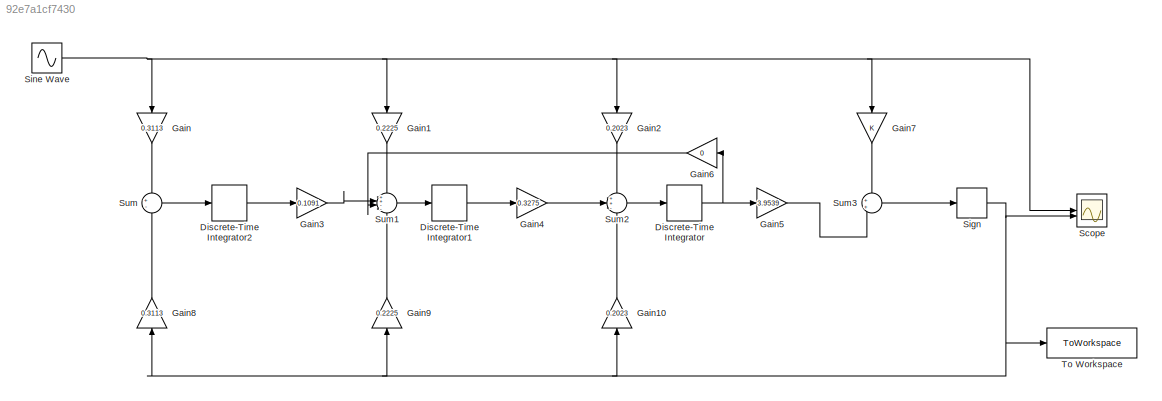
MODEL slx_92e7a1cf7430
KIND model
CONFIG AbsTol = auto
CONFIG EnableMultiTasking = off
CONFIG FixedStep = auto
CONFIG MaxStep = auto
CONFIG MinStep = auto
CONFIG RelTol = 1e-3
CONFIG SampleTimeConstraint = Unconstrained
CONFIG SolverName = VariableStepAuto
CONFIG StartTime = 0.0
CONFIG StopTime = 1000000
BLOCK [DiscreteIntegrator] Discrete-Time Integrator
  ICPrevOutput = DiscIntNeverNeededParam
  ICPrevScaledInput = DiscIntNeverNeededParam
  InitialConditionSetting = Auto
  LimitOutput = on
  LowerSaturationLimit = -1.8
  SampleTime = 0.1
  UpperSaturationLimit = 1.8
  gainval = 1
BLOCK [DiscreteIntegrator] Discrete-Time Integrator1
  ICPrevOutput = DiscIntNeverNeededParam
  ICPrevScaledInput = DiscIntNeverNeededParam
  InitialConditionSetting = Auto
  LimitOutput = on
  LowerSaturationLimit = -1.8
  SampleTime = 0.1
  UpperSaturationLimit = 1.8
  gainval = 1
BLOCK [DiscreteIntegrator] Discrete-Time Integrator2
  ICPrevOutput = DiscIntNeverNeededParam
  ICPrevScaledInput = DiscIntNeverNeededParam
  InitialConditionSetting = Auto
  LimitOutput = on
  LowerSaturationLimit = -1.8
  SampleTime = 0.1
  UpperSaturationLimit = 1.8
  gainval = 1
BLOCK [Gain] Gain
  Gain = 0.3113
  NameLocation = left
BLOCK [Gain] Gain1
  Gain = 0.2225
  NameLocation = left
BLOCK [Gain] Gain10
  Gain = 0.2023
  NameLocation = right
BLOCK [Gain] Gain2
  Gain = 0.2023
  NameLocation = left
BLOCK [Gain] Gain3
  Gain = 0.1091
BLOCK [Gain] Gain4
  Gain = 0.3275
BLOCK [Gain] Gain5
  Gain = 3.9539
BLOCK [Gain] Gain6
  Gain = 0
  NameLocation = top
BLOCK [Gain] Gain7
  NameLocation = left
BLOCK [Gain] Gain8
  Gain = 0.3113
  NameLocation = right
BLOCK [Gain] Gain9
  Gain = 0.2225
  NameLocation = right
BLOCK [Scope] Scope
  Floating = off
  NumInputPorts = 2
  ScopeSpecificationString = Simulink.scopes.TimeScopeBlockCfg('CurrentConfiguration', extmgr.ConfigurationSet(extmgr.Configuration('Core','General UI',true),extmgr.Configuration('Core','Source UI',true),extmgr.Configuration('Sources','WiredSimulink',true),extmgr.Configuration('Visuals','Time Domain',true,'SerializedDisplays',{struct('MinYLimReal','-0.625','MaxYLimReal','0.625','YLabelReal','','MinYLimMag','0.00000','MaxYLimM...<+2243ch>
BLOCK [Signum] Sign
BLOCK [Sin] Sine Wave
  Amplitude = 0.5
  Frequency = 500*2*3.14
  SampleTime = 0.1
  Samples = 8192000
  SineType = Sample based
BLOCK [Sum] Sum
  Inputs = +-
BLOCK [Sum] Sum1
  Inputs = ++--
BLOCK [Sum] Sum2
  Inputs = ++-
BLOCK [Sum] Sum3
BLOCK [ToWorkspace] To Workspace
  FixptAsFi = on
  MaxDataPoints = inf
  SampleTime = -1
  VariableName = dsm_out
LINE Discrete-Time Integrator1:1 -> Gain4:1
LINE Discrete-Time Integrator2:1 -> Gain3:1
NET Discrete-Time Integrator:1 -> Gain5:1, Gain6:1
LINE Gain10:1 -> Sum2:3
LINE Gain1:1 -> Sum1:1
LINE Gain2:1 -> Sum2:1
LINE Gain3:1 -> Sum1:2
LINE Gain4:1 -> Sum2:2
LINE Gain5:1 -> Sum3:2
LINE Gain6:1 -> Sum1:3
LINE Gain7:1 -> Sum3:1
LINE Gain8:1 -> Sum:2
LINE Gain9:1 -> Sum1:4
LINE Gain:1 -> Sum:1
NET Sign:1 -> Gain10:1, Gain8:1, Gain9:1, Scope:2, To Workspace:1
NET Sine Wave:1 -> Gain1:1, Gain2:1, Gain7:1, Gain:1, Scope:1
LINE Sum1:1 -> Discrete-Time Integrator1:1
LINE Sum2:1 -> Discrete-Time Integrator:1
LINE Sum3:1 -> Sign:1
LINE Sum:1 -> Discrete-Time Integrator2:1
note: NET lines group one-source signal fan-out (src -> all destinations, sorted); 1:1 wires keep LINE
